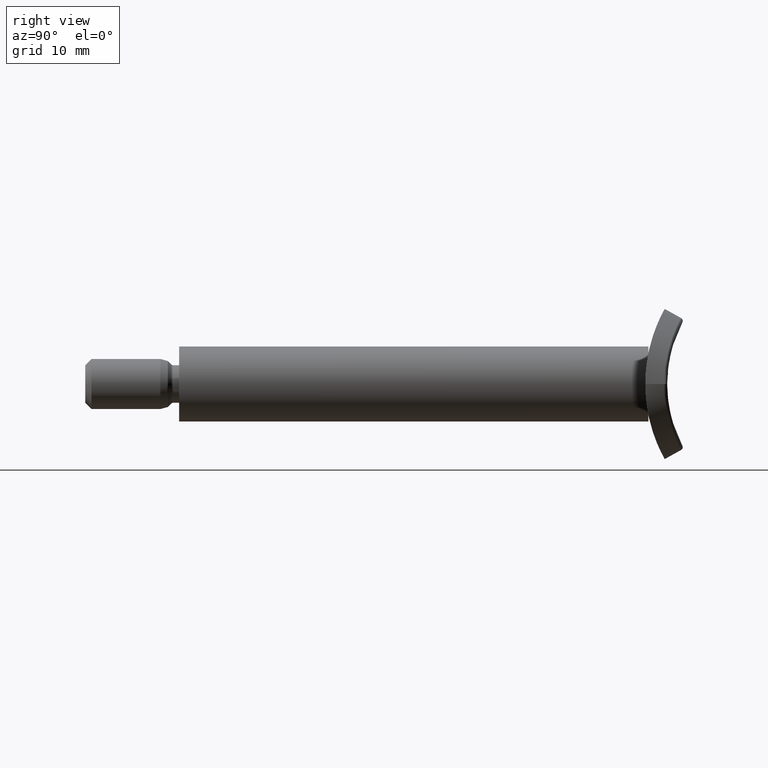
[diagram: clean part render]
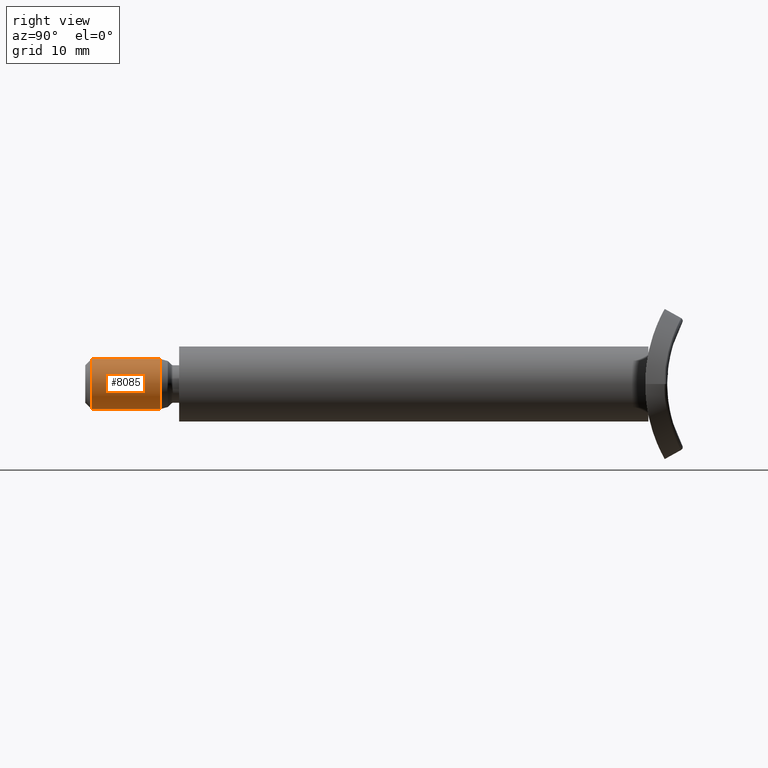
[diagram: same view with one face highlighted and labeled with its STEP entity id]
A machine part, right view. The second image highlights one B-rep face of the part: STEP entity #8085.
In plain terms, the highlighted cylindrical surface (bore or boss wall) has radius 4 mm, axis along (-0, -1, -0).
Its self-contained STEP definition (entity closure, byte-faithful):
#316 = AXIS2_PLACEMENT_3D ( 'NONE', #3517, #8080, #13980 ) ;
#928 = FACE_OUTER_BOUND ( 'NONE', #10240, .T. ) ;
#2156 = CIRCLE ( 'NONE', #13917, 4.000000000000000000 ) ;
#3517 = CARTESIAN_POINT ( 'NONE',  ( 0.0000000000000000000, -2.999999999999999100, 0.0000000000000000000 ) ) ;
#3653 = VERTEX_POINT ( 'NONE', #10251 ) ;
#3661 = EDGE_CURVE ( 'NONE', #3653, #3653, #12953, .T. ) ;
#5784 = AXIS2_PLACEMENT_3D ( 'NONE', #10323, #11473, #14747 ) ;
#5984 = EDGE_LOOP ( 'NONE', ( #6341 ) ) ;
#6341 = ORIENTED_EDGE ( 'NONE', *, *, #11911, .F. ) ;
#8080 = DIRECTION ( 'NONE',  ( -0.0000000000000000000, -1.000000000000000000, -0.0000000000000000000 ) ) ;
#8085 = ADVANCED_FACE ( 'NONE', ( #928, #9457 ), #14367, .T. ) ;
#8860 = CARTESIAN_POINT ( 'NONE',  ( 0.0000000000000000000, -13.99999999999999800, 0.0000000000000000000 ) ) ;
#9457 = FACE_OUTER_BOUND ( 'NONE', #5984, .T. ) ;
#10240 = EDGE_LOOP ( 'NONE', ( #11680 ) ) ;
#10251 = CARTESIAN_POINT ( 'NONE',  ( 0.0000000000000000000, -2.999999999999999100, -4.000000000000000000 ) ) ;
#10323 = CARTESIAN_POINT ( 'NONE',  ( 0.0000000000000000000, 0.0000000000000000000, 0.0000000000000000000 ) ) ;
#11473 = DIRECTION ( 'NONE',  ( -0.0000000000000000000, -1.000000000000000000, -0.0000000000000000000 ) ) ;
#11680 = ORIENTED_EDGE ( 'NONE', *, *, #3661, .T. ) ;
#11911 = EDGE_CURVE ( 'NONE', #13420, #13420, #2156, .T. ) ;
#12587 = CARTESIAN_POINT ( 'NONE',  ( 0.0000000000000000000, -13.99999999999999800, -4.000000000000000000 ) ) ;
#12953 = CIRCLE ( 'NONE', #316, 4.000000000000000000 ) ;
#13420 = VERTEX_POINT ( 'NONE', #12587 ) ;
#13474 = DIRECTION ( 'NONE',  ( -0.0000000000000000000, -1.000000000000000000, -0.0000000000000000000 ) ) ;
#13917 = AXIS2_PLACEMENT_3D ( 'NONE', #8860, #13474, #14713 ) ;
#13980 = DIRECTION ( 'NONE',  ( 0.0000000000000000000, 0.0000000000000000000, -1.000000000000000000 ) ) ;
#14367 = CYLINDRICAL_SURFACE ( 'NONE', #5784, 4.000000000000000000 ) ;
#14713 = DIRECTION ( 'NONE',  ( 0.0000000000000000000, 0.0000000000000000000, -1.000000000000000000 ) ) ;
#14747 = DIRECTION ( 'NONE',  ( 0.0000000000000000000, 0.0000000000000000000, -1.000000000000000000 ) ) ;